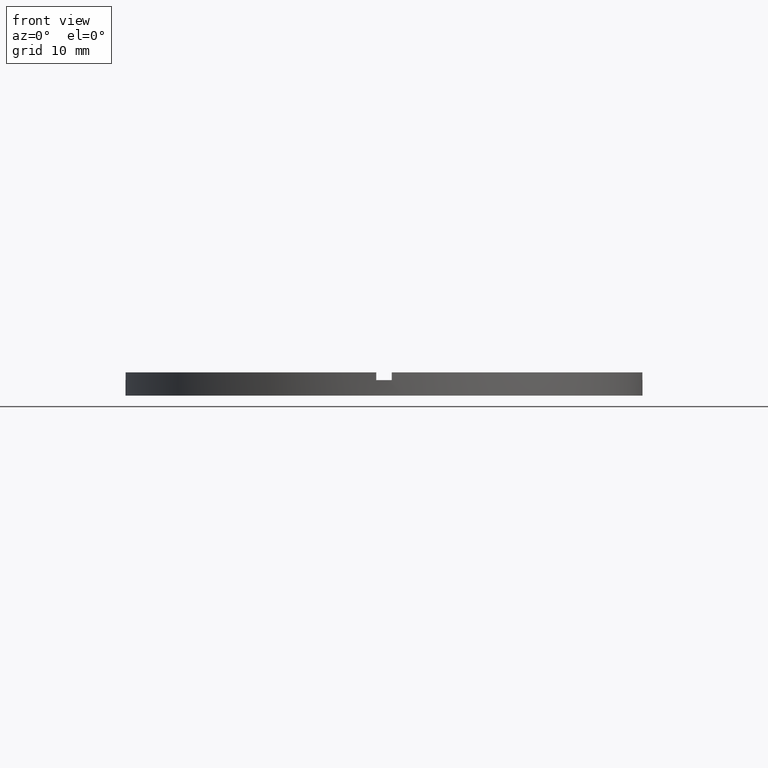
[diagram: clean part render]
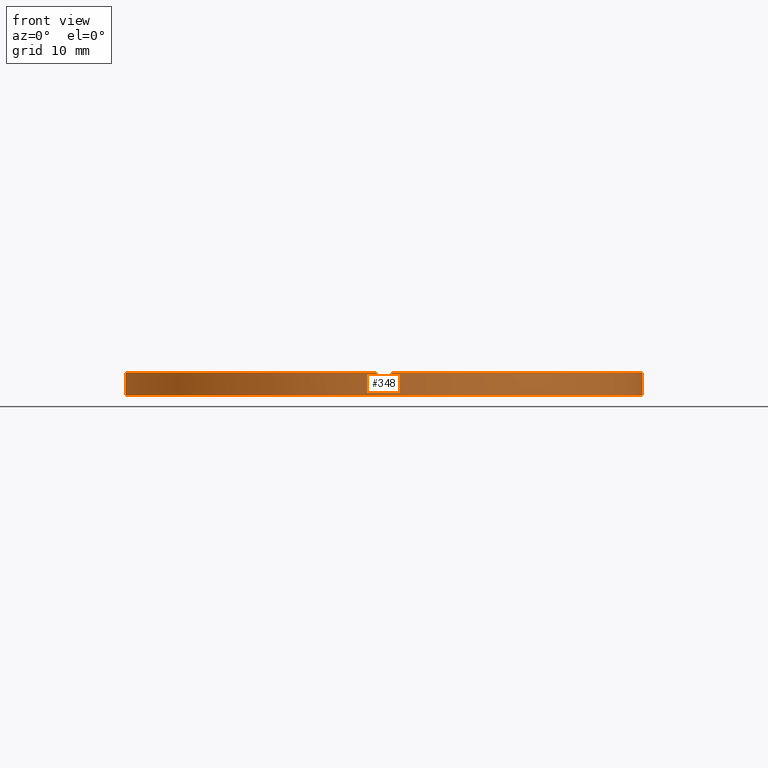
[diagram: same view with one face highlighted and labeled with its STEP entity id]
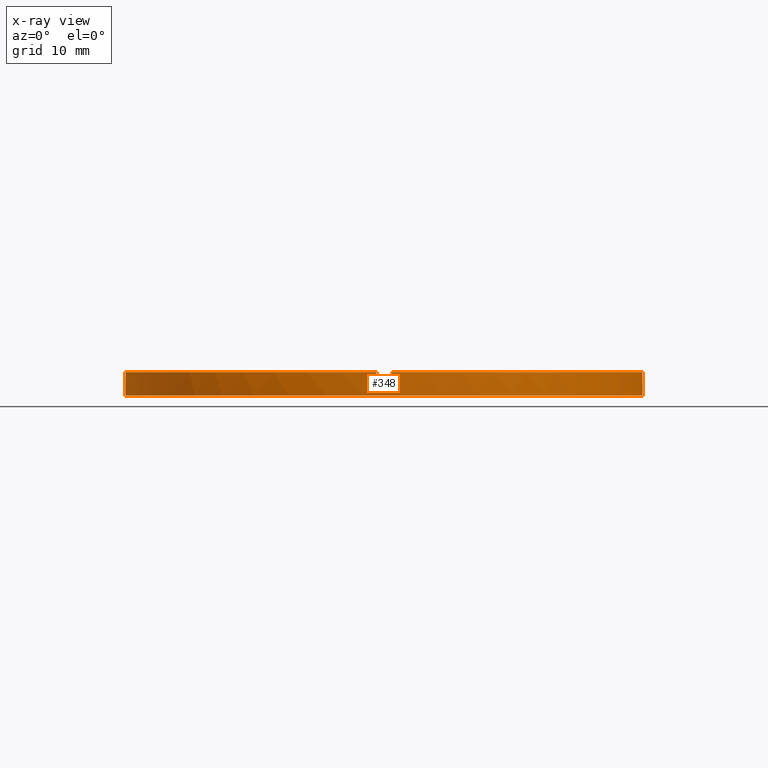
[diagram: x-ray of the same camera — body ghosted, the highlighted face saturated]
A machine part, front view. The second image highlights one B-rep face of the part: STEP entity #348.
The next image is the same camera in x-ray: the body ghosted, the highlighted face saturated — about 0% of this face is hidden behind the body in this view.
In plain terms, the highlighted cylindrical surface (partial cylindrical patch) has radius 33.5 mm, axis along (-0, -0, -1).
Its self-contained STEP definition (entity closure, byte-faithful):
#3 = LINE ( 'NONE', #165, #6 ) ;
#6 = VECTOR ( 'NONE', #636, 1000.000000000000000 ) ;
#7 = DIRECTION ( 'NONE',  ( 0.000000000000000000, 0.000000000000000000, 1.000000000000000000 ) ) ;
#29 = DIRECTION ( 'NONE',  ( -0.000000000000000000, -0.000000000000000000, -1.000000000000000000 ) ) ;
#33 = VERTEX_POINT ( 'NONE', #180 ) ;
#36 = AXIS2_PLACEMENT_3D ( 'NONE', #680, #7, #164 ) ;
#39 = VECTOR ( 'NONE', #29, 1000.000000000000000 ) ;
#49 = ORIENTED_EDGE ( 'NONE', *, *, #690, .F. ) ;
#58 = FACE_OUTER_BOUND ( 'NONE', #642, .T. ) ;
#83 = CARTESIAN_POINT ( 'NONE',  ( -1.000000000000160982, -33.48507130050644065, 3.000000000000000000 ) ) ;
#90 = AXIS2_PLACEMENT_3D ( 'NONE', #257, #553, #172 ) ;
#113 = ORIENTED_EDGE ( 'NONE', *, *, #514, .T. ) ;
#117 = VERTEX_POINT ( 'NONE', #662 ) ;
#119 = VERTEX_POINT ( 'NONE', #275 ) ;
#136 = CARTESIAN_POINT ( 'NONE',  ( 33.50000000000000000, 4.102566777143633774E-15, 3.000000000000000000 ) ) ;
#150 = CARTESIAN_POINT ( 'NONE',  ( -1.000000000000160982, -33.48507130050644065, 2.000000000000000000 ) ) ;
#160 = DIRECTION ( 'NONE',  ( 0.000000000000000000, 0.000000000000000000, 1.000000000000000000 ) ) ;
#161 = CARTESIAN_POINT ( 'NONE',  ( 0.000000000000000000, 0.000000000000000000, 2.000000000000000000 ) ) ;
#164 = DIRECTION ( 'NONE',  ( 1.000000000000000000, 0.000000000000000000, 0.000000000000000000 ) ) ;
#165 = CARTESIAN_POINT ( 'NONE',  ( -33.48507130050644065, -1.000000000000026423, 3.000000000000000000 ) ) ;
#168 = AXIS2_PLACEMENT_3D ( 'NONE', #420, #735, #701 ) ;
#172 = DIRECTION ( 'NONE',  ( 1.000000000000000000, 0.000000000000000000, 0.000000000000000000 ) ) ;
#180 = CARTESIAN_POINT ( 'NONE',  ( 33.48507130050644065, -1.000000000000158318, 3.000000000000000000 ) ) ;
#183 = EDGE_CURVE ( 'NONE', #119, #33, #396, .T. ) ;
#193 = CARTESIAN_POINT ( 'NONE',  ( 0.000000000000000000, 0.000000000000000000, 3.000000000000000000 ) ) ;
#214 = EDGE_CURVE ( 'NONE', #344, #603, #328, .T. ) ;
#234 = CARTESIAN_POINT ( 'NONE',  ( -33.50000000000000000, 0.000000000000000000, 3.000000000000000000 ) ) ;
#243 = LINE ( 'NONE', #136, #777 ) ;
#257 = CARTESIAN_POINT ( 'NONE',  ( 0.000000000000000000, 0.000000000000000000, 3.000000000000000000 ) ) ;
#267 = EDGE_CURVE ( 'NONE', #371, #637, #574, .T. ) ;
#275 = CARTESIAN_POINT ( 'NONE',  ( 0.9999999999998391287, -33.48507130050644776, 3.000000000000000000 ) ) ;
#276 = VERTEX_POINT ( 'NONE', #355 ) ;
#293 = ORIENTED_EDGE ( 'NONE', *, *, #645, .T. ) ;
#306 = CARTESIAN_POINT ( 'NONE',  ( -33.50000000000000000, 0.000000000000000000, 2.000000000000000000 ) ) ;
#319 = VECTOR ( 'NONE', #502, 1000.000000000000000 ) ;
#324 = ORIENTED_EDGE ( 'NONE', *, *, #527, .T. ) ;
#328 = LINE ( 'NONE', #406, #319 ) ;
#329 = ORIENTED_EDGE ( 'NONE', *, *, #686, .F. ) ;
#331 = AXIS2_PLACEMENT_3D ( 'NONE', #161, #452, #682 ) ;
#341 = EDGE_CURVE ( 'NONE', #276, #603, #566, .T. ) ;
#344 = VERTEX_POINT ( 'NONE', #150 ) ;
#348 = ADVANCED_FACE ( 'NONE', ( #58 ), #584, .T. ) ;
#350 = LINE ( 'NONE', #567, #564 ) ;
#355 = CARTESIAN_POINT ( 'NONE',  ( -33.48507130050644065, -1.000000000000026423, 3.000000000000000000 ) ) ;
#356 = DIRECTION ( 'NONE',  ( -0.000000000000000000, -0.000000000000000000, -1.000000000000000000 ) ) ;
#371 = VERTEX_POINT ( 'NONE', #306 ) ;
#390 = ORIENTED_EDGE ( 'NONE', *, *, #341, .F. ) ;
#394 = CIRCLE ( 'NONE', #331, 33.50000000000000000 ) ;
#396 = CIRCLE ( 'NONE', #90, 33.50000000000000000 ) ;
#397 = ORIENTED_EDGE ( 'NONE', *, *, #597, .F. ) ;
#406 = CARTESIAN_POINT ( 'NONE',  ( -1.000000000000160982, -33.48507130050644065, 3.000000000000000000 ) ) ;
#414 = EDGE_CURVE ( 'NONE', #637, #648, #747, .T. ) ;
#420 = CARTESIAN_POINT ( 'NONE',  ( 0.000000000000000000, 0.000000000000000000, 2.000000000000000000 ) ) ;
#439 = EDGE_CURVE ( 'NONE', #117, #711, #394, .T. ) ;
#441 = DIRECTION ( 'NONE',  ( 1.000000000000000000, 0.000000000000000000, 0.000000000000000000 ) ) ;
#452 = DIRECTION ( 'NONE',  ( 0.000000000000000000, 0.000000000000000000, 1.000000000000000000 ) ) ;
#473 = AXIS2_PLACEMENT_3D ( 'NONE', #193, #537, #441 ) ;
#485 = VECTOR ( 'NONE', #160, 1000.000000000000000 ) ;
#487 = DIRECTION ( 'NONE',  ( -0.000000000000000000, 0.000000000000000000, 1.000000000000000000 ) ) ;
#501 = DIRECTION ( 'NONE',  ( -0.000000000000000000, -0.000000000000000000, -1.000000000000000000 ) ) ;
#502 = DIRECTION ( 'NONE',  ( 0.000000000000000000, 0.000000000000000000, 1.000000000000000000 ) ) ;
#504 = CARTESIAN_POINT ( 'NONE',  ( 33.48507130050644065, -1.000000000000158318, 3.000000000000000000 ) ) ;
#514 = EDGE_CURVE ( 'NONE', #119, #621, #350, .T. ) ;
#524 = CIRCLE ( 'NONE', #168, 33.50000000000000000 ) ;
#527 = EDGE_CURVE ( 'NONE', #117, #33, #671, .T. ) ;
#529 = CIRCLE ( 'NONE', #743, 33.50000000000000000 ) ;
#537 = DIRECTION ( 'NONE',  ( 0.000000000000000000, 0.000000000000000000, 1.000000000000000000 ) ) ;
#539 = DIRECTION ( 'NONE',  ( 1.000000000000000000, 0.000000000000000000, 0.000000000000000000 ) ) ;
#542 = ORIENTED_EDGE ( 'NONE', *, *, #183, .F. ) ;
#546 = ORIENTED_EDGE ( 'NONE', *, *, #214, .T. ) ;
#551 = CARTESIAN_POINT ( 'NONE',  ( 0.9999999999998391287, -33.48507130050644776, 2.000000000000000000 ) ) ;
#553 = DIRECTION ( 'NONE',  ( 0.000000000000000000, 0.000000000000000000, 1.000000000000000000 ) ) ;
#557 = CARTESIAN_POINT ( 'NONE',  ( -33.50000000000000000, 0.000000000000000000, 0.000000000000000000 ) ) ;
#564 = VECTOR ( 'NONE', #501, 1000.000000000000000 ) ;
#566 = CIRCLE ( 'NONE', #473, 33.50000000000000000 ) ;
#567 = CARTESIAN_POINT ( 'NONE',  ( 0.9999999999998391287, -33.48507130050644776, 3.000000000000000000 ) ) ;
#568 = ORIENTED_EDGE ( 'NONE', *, *, #414, .T. ) ;
#574 = LINE ( 'NONE', #234, #39 ) ;
#584 = CYLINDRICAL_SURFACE ( 'NONE', #692, 33.50000000000000000 ) ;
#597 = EDGE_CURVE ( 'NONE', #371, #718, #524, .T. ) ;
#601 = ORIENTED_EDGE ( 'NONE', *, *, #439, .F. ) ;
#603 = VERTEX_POINT ( 'NONE', #83 ) ;
#613 = CARTESIAN_POINT ( 'NONE',  ( 0.000000000000000000, 0.000000000000000000, 3.000000000000000000 ) ) ;
#615 = CARTESIAN_POINT ( 'NONE',  ( 0.000000000000000000, 0.000000000000000000, 2.000000000000000000 ) ) ;
#621 = VERTEX_POINT ( 'NONE', #551 ) ;
#636 = DIRECTION ( 'NONE',  ( -0.000000000000000000, -0.000000000000000000, -1.000000000000000000 ) ) ;
#637 = VERTEX_POINT ( 'NONE', #557 ) ;
#639 = DIRECTION ( 'NONE',  ( -1.000000000000000000, 0.000000000000000000, 0.000000000000000000 ) ) ;
#642 = EDGE_LOOP ( 'NONE', ( #49, #601, #324, #542, #113, #329, #546, #390, #293, #397, #656, #568 ) ) ;
#645 = EDGE_CURVE ( 'NONE', #276, #718, #3, .T. ) ;
#648 = VERTEX_POINT ( 'NONE', #697 ) ;
#656 = ORIENTED_EDGE ( 'NONE', *, *, #267, .T. ) ;
#662 = CARTESIAN_POINT ( 'NONE',  ( 33.48507130050644065, -1.000000000000158318, 2.000000000000000000 ) ) ;
#671 = LINE ( 'NONE', #504, #485 ) ;
#674 = CARTESIAN_POINT ( 'NONE',  ( 33.50000000000000000, 4.102566777143633774E-15, 2.000000000000000000 ) ) ;
#678 = DIRECTION ( 'NONE',  ( -0.000000000000000000, -0.000000000000000000, -1.000000000000000000 ) ) ;
#679 = CARTESIAN_POINT ( 'NONE',  ( -33.48507130050644065, -1.000000000000026423, 2.000000000000000000 ) ) ;
#680 = CARTESIAN_POINT ( 'NONE',  ( 0.000000000000000000, 0.000000000000000000, 0.000000000000000000 ) ) ;
#682 = DIRECTION ( 'NONE',  ( 1.000000000000000000, 0.000000000000000000, 0.000000000000000000 ) ) ;
#686 = EDGE_CURVE ( 'NONE', #344, #621, #529, .T. ) ;
#690 = EDGE_CURVE ( 'NONE', #711, #648, #243, .T. ) ;
#692 = AXIS2_PLACEMENT_3D ( 'NONE', #613, #678, #639 ) ;
#697 = CARTESIAN_POINT ( 'NONE',  ( 33.50000000000000000, 4.102566777143633774E-15, 0.000000000000000000 ) ) ;
#701 = DIRECTION ( 'NONE',  ( 1.000000000000000000, 0.000000000000000000, 0.000000000000000000 ) ) ;
#711 = VERTEX_POINT ( 'NONE', #674 ) ;
#718 = VERTEX_POINT ( 'NONE', #679 ) ;
#735 = DIRECTION ( 'NONE',  ( 0.000000000000000000, 0.000000000000000000, 1.000000000000000000 ) ) ;
#743 = AXIS2_PLACEMENT_3D ( 'NONE', #615, #487, #539 ) ;
#747 = CIRCLE ( 'NONE', #36, 33.50000000000000000 ) ;
#777 = VECTOR ( 'NONE', #356, 1000.000000000000000 ) ;